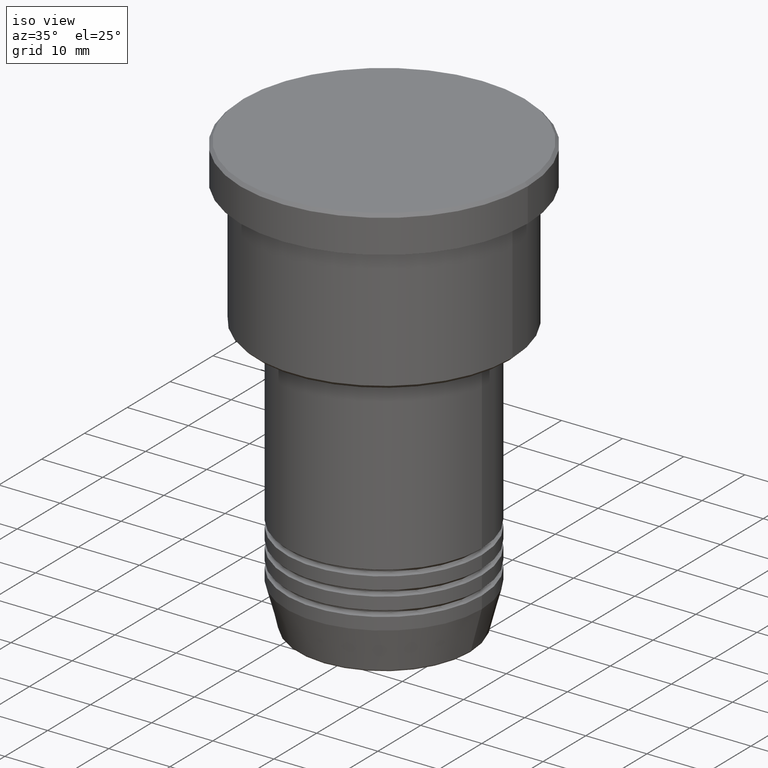
[diagram: clean part render]
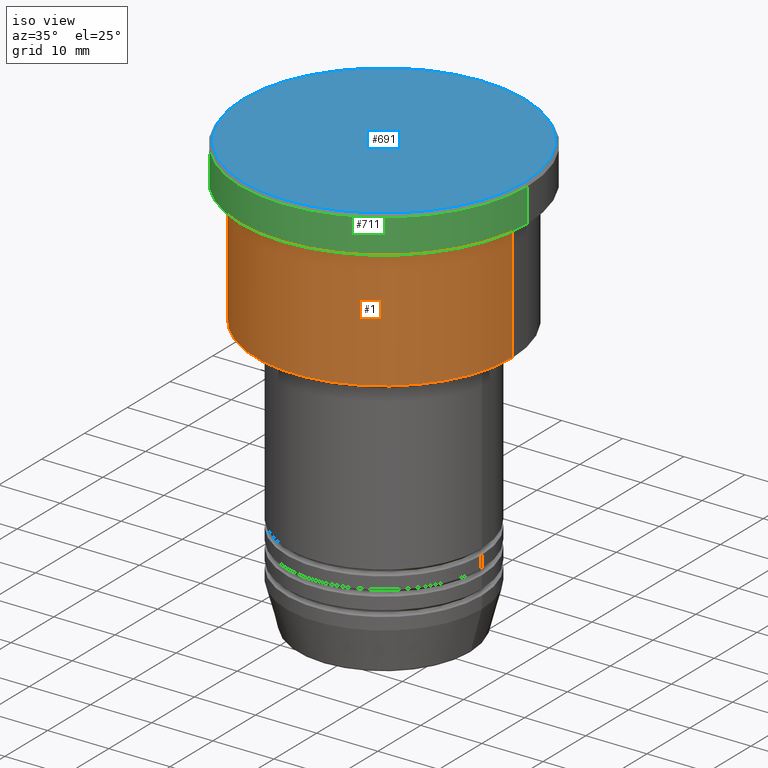
[diagram: same view with three faces highlighted in distinct colors, each labeled with its STEP entity id]
A machine part, iso view with three faces highlighted in distinct colors.
Their STEP definitions:

[orange] entity #1 — the highlighted cylindrical surface (partial cylindrical patch) has radius 21 mm, axis along (-0, -0, 1).
#1 = ADVANCED_FACE ( 'NONE', ( #594 ), #956, .T. ) ;
#15 = ORIENTED_EDGE ( 'NONE', *, *, #886, .F. ) ;
#43 = EDGE_CURVE ( 'NONE', #774, #1136, #782, .T. ) ;
#106 = LINE ( 'NONE', #368, #266 ) ;
#140 = CARTESIAN_POINT ( 'NONE',  ( 0.000000000000000000, 0.000000000000000000, 0.000000000000000000 ) ) ;
#171 = DIRECTION ( 'NONE',  ( 1.000000000000000000, 0.000000000000000000, 0.000000000000000000 ) ) ;
#180 = DIRECTION ( 'NONE',  ( -0.000000000000000000, -0.000000000000000000, 1.000000000000000000 ) ) ;
#190 = VERTEX_POINT ( 'NONE', #1006 ) ;
#239 = CIRCLE ( 'NONE', #902, 21.00000000000000000 ) ;
#266 = VECTOR ( 'NONE', #1096, 1000.000000000000000 ) ;
#298 = EDGE_LOOP ( 'NONE', ( #15, #933, #562, #1095 ) ) ;
#353 = CARTESIAN_POINT ( 'NONE',  ( 0.000000000000000000, 0.000000000000000000, -6.999999999999994671 ) ) ;
#368 = CARTESIAN_POINT ( 'NONE',  ( -21.00000000000000000, 2.571758278209441661E-15, 0.000000000000000000 ) ) ;
#500 = DIRECTION ( 'NONE',  ( -0.000000000000000000, -0.000000000000000000, 1.000000000000000000 ) ) ;
#526 = VERTEX_POINT ( 'NONE', #894 ) ;
#529 = CARTESIAN_POINT ( 'NONE',  ( 0.000000000000000000, 0.000000000000000000, -26.50000000000002132 ) ) ;
#557 = EDGE_CURVE ( 'NONE', #1136, #190, #1119, .T. ) ;
#562 = ORIENTED_EDGE ( 'NONE', *, *, #557, .T. ) ;
#570 = CARTESIAN_POINT ( 'NONE',  ( 21.00000000000000000, 0.000000000000000000, 0.000000000000000000 ) ) ;
#594 = FACE_OUTER_BOUND ( 'NONE', #298, .T. ) ;
#624 = DIRECTION ( 'NONE',  ( -1.000000000000000000, 0.000000000000000000, 0.000000000000000000 ) ) ;
#671 = VECTOR ( 'NONE', #836, 1000.000000000000000 ) ;
#774 = VERTEX_POINT ( 'NONE', #850 ) ;
#782 = CIRCLE ( 'NONE', #862, 21.00000000000000000 ) ;
#808 = DIRECTION ( 'NONE',  ( -0.000000000000000000, -0.000000000000000000, 1.000000000000000000 ) ) ;
#810 = CARTESIAN_POINT ( 'NONE',  ( 21.00000000000000000, 0.000000000000000000, -26.50000000000002132 ) ) ;
#836 = DIRECTION ( 'NONE',  ( -0.000000000000000000, -0.000000000000000000, 1.000000000000000000 ) ) ;
#850 = CARTESIAN_POINT ( 'NONE',  ( -21.00000000000000000, 2.571758278209441661E-15, -26.50000000000002132 ) ) ;
#860 = AXIS2_PLACEMENT_3D ( 'NONE', #140, #500, #1093 ) ;
#862 = AXIS2_PLACEMENT_3D ( 'NONE', #529, #808, #624 ) ;
#886 = EDGE_CURVE ( 'NONE', #774, #526, #106, .T. ) ;
#894 = CARTESIAN_POINT ( 'NONE',  ( -21.00000000000000000, 2.571758278209441661E-15, -6.999999999999994671 ) ) ;
#902 = AXIS2_PLACEMENT_3D ( 'NONE', #353, #180, #171 ) ;
#933 = ORIENTED_EDGE ( 'NONE', *, *, #43, .T. ) ;
#956 = CYLINDRICAL_SURFACE ( 'NONE', #860, 21.00000000000000000 ) ;
#1006 = CARTESIAN_POINT ( 'NONE',  ( 21.00000000000000000, 0.000000000000000000, -6.999999999999994671 ) ) ;
#1093 = DIRECTION ( 'NONE',  ( 1.000000000000000000, 0.000000000000000000, 0.000000000000000000 ) ) ;
#1095 = ORIENTED_EDGE ( 'NONE', *, *, #1139, .F. ) ;
#1096 = DIRECTION ( 'NONE',  ( -0.000000000000000000, -0.000000000000000000, 1.000000000000000000 ) ) ;
#1119 = LINE ( 'NONE', #570, #671 ) ;
#1136 = VERTEX_POINT ( 'NONE', #810 ) ;
#1139 = EDGE_CURVE ( 'NONE', #526, #190, #239, .T. ) ;

[blue] entity #691 — the highlighted planar face has unit normal (0, -0, 1).
#13 = DIRECTION ( 'NONE',  ( -0.000000000000000000, -0.000000000000000000, 1.000000000000000000 ) ) ;
#81 = VERTEX_POINT ( 'NONE', #355 ) ;
#95 = CARTESIAN_POINT ( 'NONE',  ( -22.99999999999999645, 0.000000000000000000, 0.000000000000000000 ) ) ;
#122 = PLANE ( 'NONE',  #843 ) ;
#141 = CIRCLE ( 'NONE', #516, 22.99999999999999645 ) ;
#150 = VERTEX_POINT ( 'NONE', #95 ) ;
#251 = AXIS2_PLACEMENT_3D ( 'NONE', #597, #315, #1062 ) ;
#295 = ORIENTED_EDGE ( 'NONE', *, *, #319, .T. ) ;
#315 = DIRECTION ( 'NONE',  ( -0.000000000000000000, -0.000000000000000000, 1.000000000000000000 ) ) ;
#319 = EDGE_CURVE ( 'NONE', #81, #150, #344, .T. ) ;
#344 = CIRCLE ( 'NONE', #251, 22.99999999999999645 ) ;
#355 = CARTESIAN_POINT ( 'NONE',  ( 22.99999999999999645, 2.847303808017596139E-15, 0.000000000000000000 ) ) ;
#390 = DIRECTION ( 'NONE',  ( 1.000000000000000000, 0.000000000000000000, 0.000000000000000000 ) ) ;
#410 = EDGE_LOOP ( 'NONE', ( #821, #295 ) ) ;
#475 = DIRECTION ( 'NONE',  ( 0.000000000000000000, -0.000000000000000000, 1.000000000000000000 ) ) ;
#516 = AXIS2_PLACEMENT_3D ( 'NONE', #642, #13, #735 ) ;
#556 = CARTESIAN_POINT ( 'NONE',  ( 0.000000000000000000, 0.000000000000000000, 0.000000000000000000 ) ) ;
#592 = EDGE_CURVE ( 'NONE', #150, #81, #141, .T. ) ;
#597 = CARTESIAN_POINT ( 'NONE',  ( 0.000000000000000000, 0.000000000000000000, 0.000000000000000000 ) ) ;
#642 = CARTESIAN_POINT ( 'NONE',  ( 0.000000000000000000, 0.000000000000000000, 0.000000000000000000 ) ) ;
#691 = ADVANCED_FACE ( 'NONE', ( #943 ), #122, .T. ) ;
#735 = DIRECTION ( 'NONE',  ( 1.000000000000000000, 0.000000000000000000, 0.000000000000000000 ) ) ;
#821 = ORIENTED_EDGE ( 'NONE', *, *, #592, .T. ) ;
#843 = AXIS2_PLACEMENT_3D ( 'NONE', #556, #475, #390 ) ;
#943 = FACE_OUTER_BOUND ( 'NONE', #410, .T. ) ;
#1062 = DIRECTION ( 'NONE',  ( 1.000000000000000000, 0.000000000000000000, 0.000000000000000000 ) ) ;

[green] entity #711 — the highlighted cylindrical surface (partial cylindrical patch) has radius 23.5 mm, axis along (-0, -0, 1).
#6 = CARTESIAN_POINT ( 'NONE',  ( -23.50000000000000000, 2.877919977996280320E-15, -5.999999999999994671 ) ) ;
#51 = ORIENTED_EDGE ( 'NONE', *, *, #222, .T. ) ;
#58 = CARTESIAN_POINT ( 'NONE',  ( -23.50000000000000000, 2.877919977996280320E-15, 0.000000000000000000 ) ) ;
#155 = ORIENTED_EDGE ( 'NONE', *, *, #299, .T. ) ;
#209 = CARTESIAN_POINT ( 'NONE',  ( 23.50000000000000000, 0.000000000000000000, 0.000000000000000000 ) ) ;
#222 = EDGE_CURVE ( 'NONE', #755, #379, #917, .T. ) ;
#286 = DIRECTION ( 'NONE',  ( -0.000000000000000000, -0.000000000000000000, 1.000000000000000000 ) ) ;
#299 = EDGE_CURVE ( 'NONE', #1088, #755, #1106, .T. ) ;
#303 = CARTESIAN_POINT ( 'NONE',  ( 23.50000000000000000, 0.000000000000000000, -0.5000000000000143219 ) ) ;
#304 = CARTESIAN_POINT ( 'NONE',  ( -23.50000000000000000, 2.877919977996280320E-15, -0.5000000000000143219 ) ) ;
#326 = EDGE_CURVE ( 'NONE', #841, #379, #609, .T. ) ;
#369 = CYLINDRICAL_SURFACE ( 'NONE', #600, 23.50000000000000000 ) ;
#379 = VERTEX_POINT ( 'NONE', #304 ) ;
#431 = ORIENTED_EDGE ( 'NONE', *, *, #326, .F. ) ;
#468 = ORIENTED_EDGE ( 'NONE', *, *, #640, .T. ) ;
#515 = VECTOR ( 'NONE', #688, 1000.000000000000000 ) ;
#547 = DIRECTION ( 'NONE',  ( -0.000000000000000000, -0.000000000000000000, 1.000000000000000000 ) ) ;
#564 = DIRECTION ( 'NONE',  ( 1.000000000000000000, 0.000000000000000000, 0.000000000000000000 ) ) ;
#565 = DIRECTION ( 'NONE',  ( 0.000000000000000000, 0.000000000000000000, -1.000000000000000000 ) ) ;
#585 = DIRECTION ( 'NONE',  ( -0.000000000000000000, -0.000000000000000000, 1.000000000000000000 ) ) ;
#589 = DIRECTION ( 'NONE',  ( 1.000000000000000000, 0.000000000000000000, 0.000000000000000000 ) ) ;
#600 = AXIS2_PLACEMENT_3D ( 'NONE', #763, #585, #589 ) ;
#609 = LINE ( 'NONE', #58, #515 ) ;
#615 = CIRCLE ( 'NONE', #803, 23.50000000000000000 ) ;
#631 = VECTOR ( 'NONE', #286, 1000.000000000000000 ) ;
#640 = EDGE_CURVE ( 'NONE', #841, #1088, #615, .T. ) ;
#688 = DIRECTION ( 'NONE',  ( -0.000000000000000000, -0.000000000000000000, 1.000000000000000000 ) ) ;
#711 = ADVANCED_FACE ( 'NONE', ( #729 ), #369, .T. ) ;
#729 = FACE_OUTER_BOUND ( 'NONE', #887, .T. ) ;
#755 = VERTEX_POINT ( 'NONE', #303 ) ;
#763 = CARTESIAN_POINT ( 'NONE',  ( 0.000000000000000000, 0.000000000000000000, 0.000000000000000000 ) ) ;
#803 = AXIS2_PLACEMENT_3D ( 'NONE', #924, #547, #564 ) ;
#841 = VERTEX_POINT ( 'NONE', #6 ) ;
#887 = EDGE_LOOP ( 'NONE', ( #431, #468, #155, #51 ) ) ;
#917 = CIRCLE ( 'NONE', #1083, 23.50000000000000000 ) ;
#924 = CARTESIAN_POINT ( 'NONE',  ( 0.000000000000000000, 0.000000000000000000, -5.999999999999994671 ) ) ;
#937 = DIRECTION ( 'NONE',  ( 1.000000000000000000, 0.000000000000000000, 0.000000000000000000 ) ) ;
#1068 = CARTESIAN_POINT ( 'NONE',  ( 23.50000000000000000, 0.000000000000000000, -5.999999999999994671 ) ) ;
#1083 = AXIS2_PLACEMENT_3D ( 'NONE', #1114, #565, #937 ) ;
#1088 = VERTEX_POINT ( 'NONE', #1068 ) ;
#1106 = LINE ( 'NONE', #209, #631 ) ;
#1114 = CARTESIAN_POINT ( 'NONE',  ( 0.000000000000000000, 0.000000000000000000, -0.5000000000000143219 ) ) ;